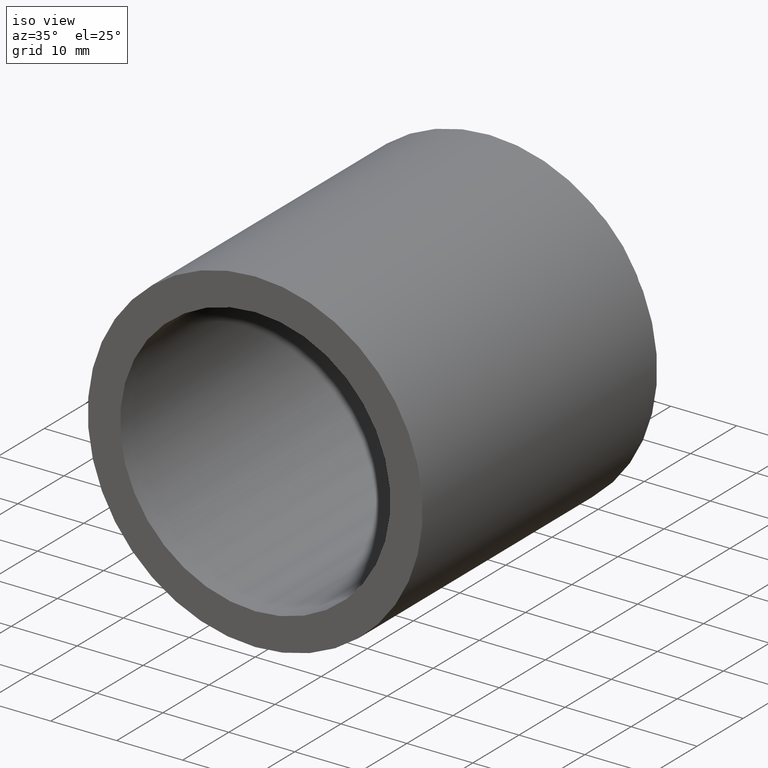
[diagram: clean part render]
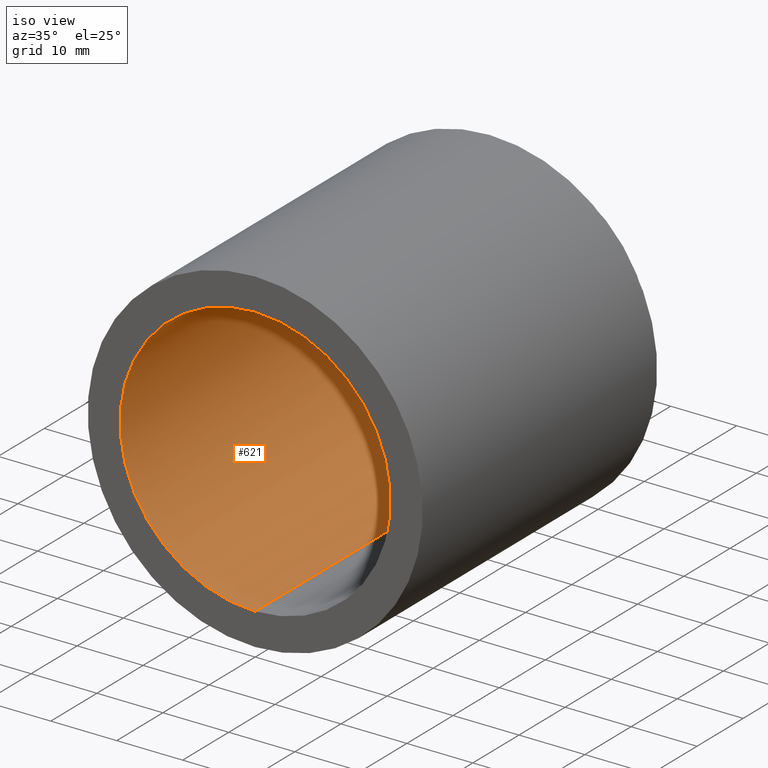
[diagram: same view with one face highlighted and labeled with its STEP entity id]
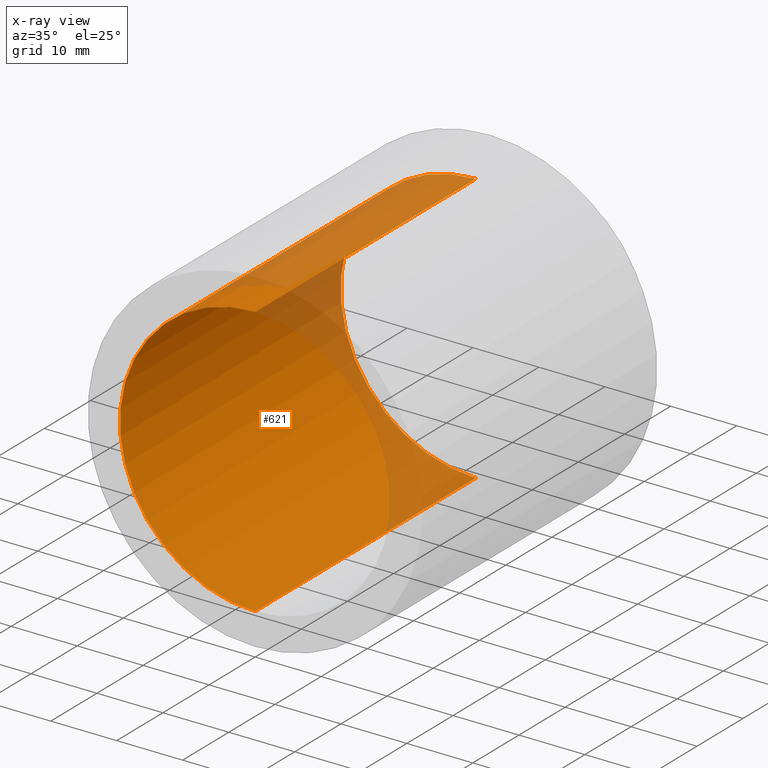
[diagram: x-ray of the same camera — body ghosted, the highlighted face saturated]
A machine part, iso view. The second image highlights one B-rep face of the part: STEP entity #621.
The next image is the same camera in x-ray: the body ghosted, the highlighted face saturated — about 23% of this face is hidden behind the body in this view.
In plain terms, the highlighted cylindrical surface (partial cylindrical patch) has radius 20.5 mm, axis along (-0, 1, -0).
Its self-contained STEP definition (entity closure, byte-faithful):
#43 = VERTEX_POINT ( 'NONE', #460 ) ;
#83 = DIRECTION ( 'NONE',  ( -0.0000000000000000000, 1.000000000000000000, -0.0000000000000000000 ) ) ;
#94 = CYLINDRICAL_SURFACE ( 'NONE', #220, 20.50000000000002100 ) ;
#104 = DIRECTION ( 'NONE',  ( -0.0000000000000000000, 1.000000000000000000, -0.0000000000000000000 ) ) ;
#133 = CARTESIAN_POINT ( 'NONE',  ( 0.0000000000000000000, -2.775557561562891400E-014, 0.0000000000000000000 ) ) ;
#150 = AXIS2_PLACEMENT_3D ( 'NONE', #133, #384, #511 ) ;
#161 = AXIS2_PLACEMENT_3D ( 'NONE', #449, #225, #169 ) ;
#169 = DIRECTION ( 'NONE',  ( 0.0000000000000000000, 0.0000000000000000000, 1.000000000000000000 ) ) ;
#174 = LINE ( 'NONE', #446, #311 ) ;
#181 = EDGE_CURVE ( 'NONE', #524, #414, #442, .T. ) ;
#199 = CIRCLE ( 'NONE', #150, 20.50000000000002100 ) ;
#201 = CARTESIAN_POINT ( 'NONE',  ( 0.0000000000000000000, -2.775557561562891400E-014, 20.50000000000002100 ) ) ;
#216 = EDGE_CURVE ( 'NONE', #524, #251, #199, .T. ) ;
#217 = CARTESIAN_POINT ( 'NONE',  ( 2.510525938252076500E-015, -2.775557561562891400E-014, -20.50000000000002100 ) ) ;
#220 = AXIS2_PLACEMENT_3D ( 'NONE', #277, #283, #375 ) ;
#225 = DIRECTION ( 'NONE',  ( -0.0000000000000000000, 1.000000000000000000, -0.0000000000000000000 ) ) ;
#251 = VERTEX_POINT ( 'NONE', #201 ) ;
#270 = EDGE_LOOP ( 'NONE', ( #486, #376, #345, #583 ) ) ;
#277 = CARTESIAN_POINT ( 'NONE',  ( 0.0000000000000000000, 161.3761669434274500, 0.0000000000000000000 ) ) ;
#282 = CIRCLE ( 'NONE', #161, 20.50000000000002100 ) ;
#283 = DIRECTION ( 'NONE',  ( -0.0000000000000000000, 1.000000000000000000, -0.0000000000000000000 ) ) ;
#311 = VECTOR ( 'NONE', #104, 1000.000000000000000 ) ;
#318 = VECTOR ( 'NONE', #83, 1000.000000000000000 ) ;
#335 = FACE_OUTER_BOUND ( 'NONE', #270, .T. ) ;
#345 = ORIENTED_EDGE ( 'NONE', *, *, #497, .T. ) ;
#375 = DIRECTION ( 'NONE',  ( 0.0000000000000000000, 0.0000000000000000000, 1.000000000000000000 ) ) ;
#376 = ORIENTED_EDGE ( 'NONE', *, *, #181, .T. ) ;
#384 = DIRECTION ( 'NONE',  ( -0.0000000000000000000, 1.000000000000000000, -0.0000000000000000000 ) ) ;
#408 = CARTESIAN_POINT ( 'NONE',  ( 2.510525938252076500E-015, 47.79999999999998300, -20.50000000000002100 ) ) ;
#414 = VERTEX_POINT ( 'NONE', #408 ) ;
#420 = EDGE_CURVE ( 'NONE', #251, #43, #174, .T. ) ;
#442 = LINE ( 'NONE', #563, #318 ) ;
#446 = CARTESIAN_POINT ( 'NONE',  ( 0.0000000000000000000, 161.3761669434274500, 20.50000000000002100 ) ) ;
#449 = CARTESIAN_POINT ( 'NONE',  ( 0.0000000000000000000, 47.79999999999998300, 0.0000000000000000000 ) ) ;
#460 = CARTESIAN_POINT ( 'NONE',  ( 0.0000000000000000000, 47.79999999999998300, 20.50000000000002100 ) ) ;
#486 = ORIENTED_EDGE ( 'NONE', *, *, #216, .F. ) ;
#497 = EDGE_CURVE ( 'NONE', #414, #43, #282, .T. ) ;
#511 = DIRECTION ( 'NONE',  ( 0.0000000000000000000, 0.0000000000000000000, 1.000000000000000000 ) ) ;
#524 = VERTEX_POINT ( 'NONE', #217 ) ;
#563 = CARTESIAN_POINT ( 'NONE',  ( 2.510525938252076500E-015, 161.3761669434274500, -20.50000000000002100 ) ) ;
#583 = ORIENTED_EDGE ( 'NONE', *, *, #420, .F. ) ;
#621 = ADVANCED_FACE ( 'NONE', ( #335 ), #94, .F. ) ;